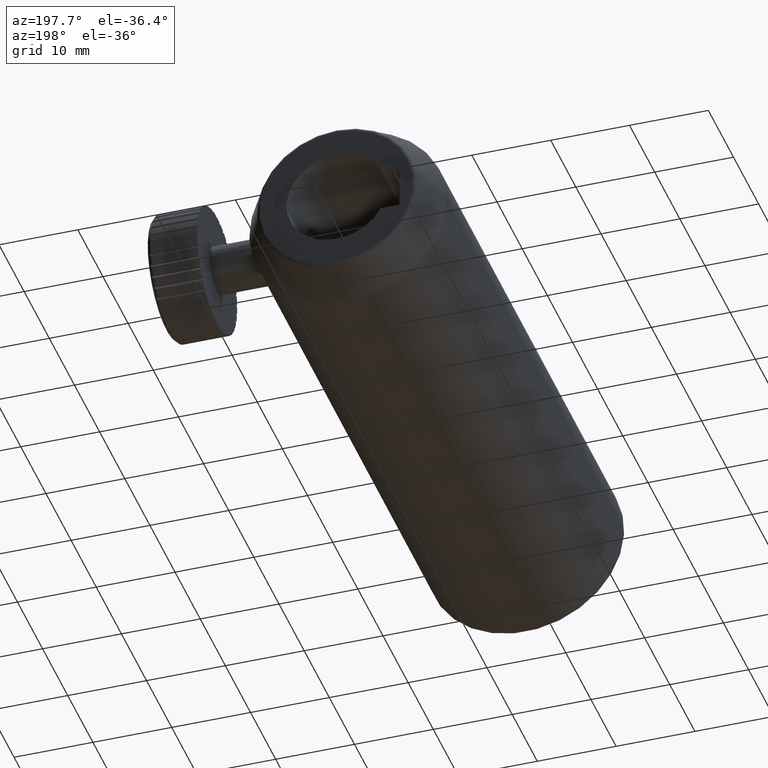
[diagram: clean part render]
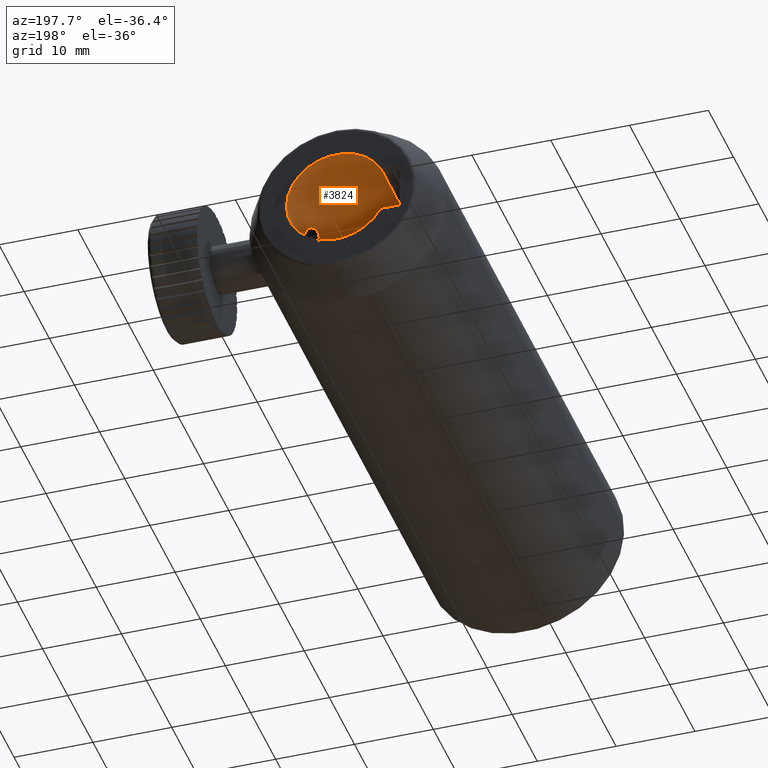
[diagram: same view with one face highlighted and labeled with its STEP entity id]
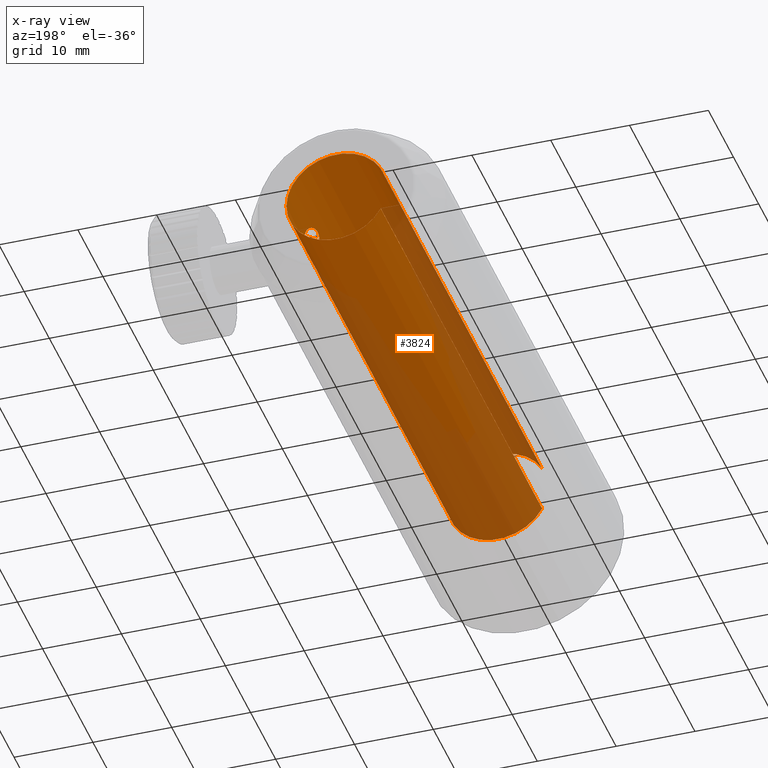
[diagram: x-ray of the same camera — body ghosted, the highlighted face saturated]
A machine part, auxiliary view. The second image highlights one B-rep face of the part: STEP entity #3824.
The next image is the same camera in x-ray: the body ghosted, the highlighted face saturated — about 52% of this face is hidden behind the body in this view.
In plain terms, the highlighted cylindrical surface (partial cylindrical patch) has radius 6.35 mm, axis along (-0, 1, -0).
Its self-contained STEP definition (entity closure, byte-faithful):
#196 = CARTESIAN_POINT ( 'NONE',  ( -11.74645182002324600, 4.887555402619315500, 2.999999999999991600 ) ) ;
#205 = CARTESIAN_POINT ( 'NONE',  ( -11.74645182002324400, 4.887555402619315500, -3.000000000000003600 ) ) ;
#206 = DIRECTION ( 'NONE',  ( -0.0000000000000000000, 1.000000000000000000, -0.0000000000000000000 ) ) ;
#209 = DIRECTION ( 'NONE',  ( -0.0000000000000000000, 1.000000000000000000, -0.0000000000000000000 ) ) ;
#217 = CARTESIAN_POINT ( 'NONE',  ( 0.1127862888916320900, 53.22654747030340200, -1.050000000000003400 ) ) ;
#218 = CARTESIAN_POINT ( 'NONE',  ( -6.149801035848838600, 69.08755540261930200, -3.686287386450715100E-015 ) ) ;
#219 = DIRECTION ( 'NONE',  ( 0.0000000000000000000, 1.000000000000000000, 0.0000000000000000000 ) ) ;
#220 = DIRECTION ( 'NONE',  ( 0.0000000000000000000, 0.0000000000000000000, 1.000000000000000000 ) ) ;
#221 = CARTESIAN_POINT ( 'NONE',  ( 0.1127862888916321100, 53.08755540261933700, -1.050000000000003600 ) ) ;
#222 = CARTESIAN_POINT ( 'NONE',  ( 0.1175538740577776700, 53.36291736459102000, -1.022551045693605800 ) ) ;
#223 = CARTESIAN_POINT ( 'NONE',  ( 0.1338553941838941700, 53.61710688648283000, -0.9170660156651465600 ) ) ;
#224 = CARTESIAN_POINT ( 'NONE',  ( 0.1452721232226505700, 53.73343532796955900, -0.8390661729969933800 ) ) ;
#225 = CARTESIAN_POINT ( 'NONE',  ( 0.1680358082486116700, 53.92676764546575200, -0.6456901207970314700 ) ) ;
#226 = CARTESIAN_POINT ( 'NONE',  ( 0.1794131331572460800, 54.00496162320275300, -0.5287358776458204200 ) ) ;
#227 = CARTESIAN_POINT ( 'NONE',  ( 0.1954532670500752400, 54.10977570415656100, -0.2761547700114848100 ) ) ;
#228 = CARTESIAN_POINT ( 'NONE',  ( 0.2001859288072050100, 54.13747656981234300, -0.1378173337657067300 ) ) ;
#229 = CARTESIAN_POINT ( 'NONE',  ( 0.2002119424379894000, 54.13763389036652300, 0.1366134853402448400 ) ) ;
#230 = CARTESIAN_POINT ( 'NONE',  ( 0.1955516781808940800, 54.11040037181292200, 0.2743394300279313200 ) ) ;
#231 = CARTESIAN_POINT ( 'NONE',  ( 0.1794205380037191800, 54.00502828858423500, 0.5288832171584710900 ) ) ;
#232 = CARTESIAN_POINT ( 'NONE',  ( 0.1681806591594753600, 53.92798082375904300, 0.6444420786181618300 ) ) ;
#233 = CARTESIAN_POINT ( 'NONE',  ( 0.1451581703907647300, 53.73248454466396900, 0.8400517144397043900 ) ) ;
#234 = CARTESIAN_POINT ( 'NONE',  ( 0.1338441040072493900, 53.61695035671112900, 0.9171405066267663800 ) ) ;
#235 = CARTESIAN_POINT ( 'NONE',  ( 0.1175571969555344900, 53.36294965107336500, 1.022528109262469800 ) ) ;
#236 = CARTESIAN_POINT ( 'NONE',  ( 0.1127953020863245900, 53.22513180593021100, 1.049946241977821800 ) ) ;
#237 = CARTESIAN_POINT ( 'NONE',  ( 0.1127773026570364600, 52.95080080214076900, 1.050053597222189600 ) ) ;
#238 = CARTESIAN_POINT ( 'NONE',  ( 0.1175582044587163000, 52.81240751252588000, 1.022502414864849800 ) ) ;
#239 = CARTESIAN_POINT ( 'NONE',  ( 0.1337361368982814300, 52.55958389235644300, 0.9178581775950304100 ) ) ;
#240 = CARTESIAN_POINT ( 'NONE',  ( 0.1451673029532555600, 52.44266625170190800, 0.8398535081107539900 ) ) ;
#241 = CARTESIAN_POINT ( 'NONE',  ( 0.1679574536873635300, 52.24890889630278700, 0.6464580183584887100 ) ) ;
#242 = CARTESIAN_POINT ( 'NONE',  ( 0.1792861826826529500, 52.17099650155407200, 0.5304802696492559900 ) ) ;
#243 = CARTESIAN_POINT ( 'NONE',  ( 0.1954785366912105700, 52.06515232504313700, 0.2760099320166076700 ) ) ;
#244 = CARTESIAN_POINT ( 'NONE',  ( 0.2001804198286628900, 52.03766755165266000, 0.1396097649219564800 ) ) ;
#245 = CARTESIAN_POINT ( 'NONE',  ( 0.2002173957539453400, 52.03744393527199500, -0.1379177008750019400 ) ) ;
#246 = CARTESIAN_POINT ( 'NONE',  ( 0.1955342158438858100, 52.06482407102776500, -0.2746212130955775800 ) ) ;
#247 = CARTESIAN_POINT ( 'NONE',  ( 0.1794355118624509400, 52.16998513439516200, -0.5286407004498763200 ) ) ;
#248 = CARTESIAN_POINT ( 'NONE',  ( 0.1680859281976586900, 52.24797849105552000, -0.6452014765189395500 ) ) ;
#295 = B_SPLINE_CURVE_WITH_KNOTS ( 'NONE', 3,
 ( #221, #217, #222, #223, #224, #225, #226, #227, #228, #229, #230, #231, #232, #233, #234, #235, #236, #237, #238, #239, #240, #241, #242, #243, #244, #245, #246, #247, #248, #3828, #3829, #3830, #3831, #3832 ),
 .UNSPECIFIED., .T., .F.,
 ( 4, 2, 2, 2, 2, 2, 2, 2, 2, 2, 2, 2, 2, 2, 2, 2, 4 ),
 ( 0.0000000000000000000, 0.0004110016561635930000, 0.0008220033123271860000, 0.001233004968490779100, 0.001644006624654372000, 0.002055008280817964900, 0.002466009936981558200, 0.002877011593145151100, 0.003288013249308744000, 0.003699014905472336900, 0.004110016561635929800, 0.004521018217799523100, 0.004932019873963116400, 0.005343021530126708900, 0.005754023186290302200, 0.006165024842453894700, 0.006576026498617488000 ),
 .UNSPECIFIED. ) ;
#296 = B_SPLINE_CURVE_WITH_KNOTS ( 'NONE', 3,
 ( #3838, #3834, #3839, #3840, #3841, #3842, #3843, #3844, #3845, #3846, #3847, #3848, #3849, #3850, #3851, #3852, #3853, #3854, #3855, #3856, #3857, #3858, #3859, #3860, #3861, #3862, #3863, #3864, #3865, #3866, #3867, #3868, #3869, #3870, #3871, #3872, #3873, #3874, #3875, #3876, #3877, #3878, #3879, #3880, #3881, #3882, #3883, #3884, #3885, #3886, #3887, #3888, #3889, #3890, #3891, #3892, #3893, #3894, #3895, #3896, #3897, #3898, #3899, #3900, #3901, #3902 ),
 .UNSPECIFIED., .T., .F.,
 ( 4, 2, 2, 2, 2, 2, 2, 2, 2, 2, 2, 2, 2, 2, 2, 2, 2, 2, 2, 2, 2, 2, 2, 2, 2, 2, 2, 2, 2, 2, 2, 2, 4 ),
 ( 0.0000000000000000000, 0.0005947439517974760200, 0.001189487903594952000, 0.001784231855392428200, 0.002378975807189904100, 0.002973719758987380000, 0.003568463710784856300, 0.004163207662582332200, 0.004757951614379808200, 0.005352695566177284100, 0.005947439517974760000, 0.006542183469772235900, 0.007136927421569712700, 0.007731671373367188600, 0.008326415325164664500, 0.008921159276962140400, 0.009515903228759616300, 0.01011064718055709200, 0.01070539113235456800, 0.01130013508415204400, 0.01189487903594952000, 0.01248962298774699600, 0.01308436693954447200, 0.01367911089134194800, 0.01427385484313942500, 0.01486859879493690100, 0.01546334274673437700, 0.01605808669853185300, 0.01665283065032932900, 0.01724757460212680500, 0.01784231855392428100, 0.01843706250572175700, 0.01903180645751923300 ),
 .UNSPECIFIED. ) ;
#1136 = DIRECTION ( 'NONE',  ( 0.0000000000000000000, 0.0000000000000000000, 1.000000000000000000 ) ) ;
#1137 = CARTESIAN_POINT ( 'NONE',  ( -6.149801035848838600, 4.887555402619315500, -3.686287386450715100E-015 ) ) ;
#1138 = DIRECTION ( 'NONE',  ( -0.0000000000000000000, 1.000000000000000000, -0.0000000000000000000 ) ) ;
#1217 = CARTESIAN_POINT ( 'NONE',  ( -11.74645182002324400, 4.887555402619315500, -3.000000000000003600 ) ) ;
#1220 = CARTESIAN_POINT ( 'NONE',  ( -11.74645182002324400, 69.08755540261930200, -3.000000000000003600 ) ) ;
#1230 = CARTESIAN_POINT ( 'NONE',  ( -11.74645182002324600, 4.887555402619315500, 2.999999999999991600 ) ) ;
#1234 = CARTESIAN_POINT ( 'NONE',  ( -11.74645182002324600, 69.08755540261930200, 2.999999999999991600 ) ) ;
#1259 = CARTESIAN_POINT ( 'NONE',  ( 0.1127862888916321100, 53.08755540261933000, -1.050000000000003600 ) ) ;
#1260 = CARTESIAN_POINT ( 'NONE',  ( -0.5531502516744344300, 59.08755540261933000, 3.000000000000000900 ) ) ;
#1838 = ORIENTED_EDGE ( 'NONE', *, *, #2944, .T. ) ;
#1839 = ORIENTED_EDGE ( 'NONE', *, *, #2943, .T. ) ;
#1840 = ORIENTED_EDGE ( 'NONE', *, *, #2936, .F. ) ;
#1841 = ORIENTED_EDGE ( 'NONE', *, *, #2945, .F. ) ;
#1842 = ORIENTED_EDGE ( 'NONE', *, *, #2938, .T. ) ;
#1843 = ORIENTED_EDGE ( 'NONE', *, *, #2946, .F. ) ;
#2539 = FACE_BOUND ( 'NONE', #4818, .T. ) ;
#2545 = FACE_BOUND ( 'NONE', #4812, .T. ) ;
#2548 = FACE_OUTER_BOUND ( 'NONE', #4816, .T. ) ;
#2550 = CYLINDRICAL_SURFACE ( 'NONE', #2676, 6.349999999999999600 ) ;
#2573 = VERTEX_POINT ( 'NONE', #1259 ) ;
#2574 = VERTEX_POINT ( 'NONE', #1260 ) ;
#2676 = AXIS2_PLACEMENT_3D ( 'NONE', #1137, #1138, #1136 ) ;
#2936 = EDGE_CURVE ( 'NONE', #4936, #4941, #3519, .T. ) ;
#2938 = EDGE_CURVE ( 'NONE', #4951, #4955, #3517, .T. ) ;
#2943 = EDGE_CURVE ( 'NONE', #4955, #4941, #3533, .T. ) ;
#2944 = EDGE_CURVE ( 'NONE', #2573, #2573, #295, .T. ) ;
#2945 = EDGE_CURVE ( 'NONE', #4951, #4936, #3537, .T. ) ;
#2946 = EDGE_CURVE ( 'NONE', #2574, #2574, #296, .T. ) ;
#3517 = LINE ( 'NONE', #196, #3526 ) ;
#3519 = LINE ( 'NONE', #205, #3522 ) ;
#3522 = VECTOR ( 'NONE', #206, 1000.000000000000000 ) ;
#3526 = VECTOR ( 'NONE', #209, 1000.000000000000000 ) ;
#3533 = CIRCLE ( 'NONE', #3763, 6.349999999999999600 ) ;
#3537 = CIRCLE ( 'NONE', #3764, 6.349999999999999600 ) ;
#3763 = AXIS2_PLACEMENT_3D ( 'NONE', #218, #219, #220 ) ;
#3764 = AXIS2_PLACEMENT_3D ( 'NONE', #3835, #3836, #3837 ) ;
#3824 = ADVANCED_FACE ( 'NONE', ( #2545, #2548, #2539 ), #2550, .F. ) ;
#3828 = CARTESIAN_POINT ( 'NONE',  ( 0.1453337888938600300, 52.44109104811040100, -0.8386048974830763200 ) ) ;
#3829 = CARTESIAN_POINT ( 'NONE',  ( 0.1338727798570093500, 52.55799765298547800, -0.9169339850863568200 ) ) ;
#3830 = CARTESIAN_POINT ( 'NONE',  ( 0.1176449637270351700, 52.81051001715046300, -1.021981016259115900 ) ) ;
#3831 = CARTESIAN_POINT ( 'NONE',  ( 0.1127862888916321400, 52.94856333493526500, -1.050000000000003600 ) ) ;
#3832 = CARTESIAN_POINT ( 'NONE',  ( 0.1127862888916321100, 53.08755540261933700, -1.050000000000003600 ) ) ;
#3834 = CARTESIAN_POINT ( 'NONE',  ( -0.5531502516744342100, 59.28894311982527700, 3.000000000000000900 ) ) ;
#3835 = CARTESIAN_POINT ( 'NONE',  ( -6.149801035848838600, 4.887555402619315500, -3.686287386450715100E-015 ) ) ;
#3836 = DIRECTION ( 'NONE',  ( 0.0000000000000000000, 1.000000000000000000, 0.0000000000000000000 ) ) ;
#3837 = DIRECTION ( 'NONE',  ( 0.0000000000000000000, 0.0000000000000000000, 1.000000000000000000 ) ) ;
#3838 = CARTESIAN_POINT ( 'NONE',  ( -0.5531502516744343200, 59.08755540261933000, 3.000000000000001300 ) ) ;
#3839 = CARTESIAN_POINT ( 'NONE',  ( -0.5422685697541045300, 59.48625305992241200, 2.979935098424563800 ) ) ;
#3840 = CARTESIAN_POINT ( 'NONE',  ( -0.5015377185805991500, 59.87331488543225800, 2.901991565792545500 ) ) ;
#3841 = CARTESIAN_POINT ( 'NONE',  ( -0.4711932425889558400, 60.06499024655251900, 2.843056039639027900 ) ) ;
#3842 = CARTESIAN_POINT ( 'NONE',  ( -0.3979850996744546100, 60.42627828958748600, 2.691870641500110600 ) ) ;
#3843 = CARTESIAN_POINT ( 'NONE',  ( -0.3552021470451639500, 60.59715604087150400, 2.599815228174492200 ) ) ;
#3844 = CARTESIAN_POINT ( 'NONE',  ( -0.2626400154835165100, 60.92063551123305800, 2.382803102034222000 ) ) ;
#3845 = CARTESIAN_POINT ( 'NONE',  ( -0.2134507766413460100, 61.07098480934787700, 2.259000875290202000 ) ) ;
#3846 = CARTESIAN_POINT ( 'NONE',  ( -0.1169261859016569200, 61.34350681313505000, 1.986897178877038200 ) ) ;
#3847 = CARTESIAN_POINT ( 'NONE',  ( -0.06887632126048977300, 61.46769347835989800, 1.836585008827332300 ) ) ;
#3848 = CARTESIAN_POINT ( 'NONE',  ( 0.01968046385121499700, 61.68561503439065100, 1.512675743178115500 ) ) ;
#3849 = CARTESIAN_POINT ( 'NONE',  ( 0.05950747701317029400, 61.77783579369636200, 1.341836234649425900 ) ) ;
#3850 = CARTESIAN_POINT ( 'NONE',  ( 0.1265185652735987500, 61.92908388393827600, 0.9817580929562289600 ) ) ;
#3851 = CARTESIAN_POINT ( 'NONE',  ( 0.1539093199242566300, 61.98849980015615600, 0.7898370028870931300 ) ) ;
#3852 = CARTESIAN_POINT ( 'NONE',  ( 0.1905218739281760700, 62.06722128126453700, 0.4011385550746269800 ) ) ;
#3853 = CARTESIAN_POINT ( 'NONE',  ( 0.2000341767572055600, 62.08720660223330900, 0.2043889757650986500 ) ) ;
#3854 = CARTESIAN_POINT ( 'NONE',  ( 0.2003595171123386800, 62.08789524011745400, -0.1940181235909419200 ) ) ;
#3855 = CARTESIAN_POINT ( 'NONE',  ( 0.1908534898148914500, 62.06792179322489700, -0.3956501949236599900 ) ) ;
#3856 = CARTESIAN_POINT ( 'NONE',  ( 0.1546836046025657500, 61.99017673343724500, -0.7835255636387373800 ) ) ;
#3857 = CARTESIAN_POINT ( 'NONE',  ( 0.1278485061401499500, 61.93203169814479700, -0.9736665999007951800 ) ) ;
#3858 = CARTESIAN_POINT ( 'NONE',  ( 0.06030490078087573400, 61.77968789711793800, -1.338467285978000000 ) ) ;
#3859 = CARTESIAN_POINT ( 'NONE',  ( 0.02034011138162611700, 61.68715591454991200, -1.509913196457731500 ) ) ;
#3860 = CARTESIAN_POINT ( 'NONE',  ( -0.06770967387431230100, 61.47064507367418400, -1.832660443775259600 ) ) ;
#3861 = CARTESIAN_POINT ( 'NONE',  ( -0.1161308705797763900, 61.34563767253786200, -1.984507923284942300 ) ) ;
#3862 = CARTESIAN_POINT ( 'NONE',  ( -0.2128131533762840600, 61.07289794008944700, -2.257348498617960600 ) ) ;
#3863 = CARTESIAN_POINT ( 'NONE',  ( -0.2614863691224205100, 60.92432806259684200, -2.379965912900855700 ) ) ;
#3864 = CARTESIAN_POINT ( 'NONE',  ( -0.3541926714055248500, 60.60101518208516300, -2.597577919322180400 ) ) ;
#3865 = CARTESIAN_POINT ( 'NONE',  ( -0.3974203815714921200, 60.42853654833533000, -2.690654279141283700 ) ) ;
#3866 = CARTESIAN_POINT ( 'NONE',  ( -0.4703271960458256200, 60.06978263624111500, -2.841316692056482300 ) ) ;
#3867 = CARTESIAN_POINT ( 'NONE',  ( -0.5004765760649931800, 59.88148515957397700, -2.899940515935108400 ) ) ;
#3868 = CARTESIAN_POINT ( 'NONE',  ( -0.5421105417189238100, 59.48961296693198600, -2.979652525030227900 ) ) ;
#3869 = CARTESIAN_POINT ( 'NONE',  ( -0.5529093375765877800, 59.29250767175780400, -2.999550561216068000 ) ) ;
#3870 = CARTESIAN_POINT ( 'NONE',  ( -0.5533831741316105300, 58.89597869896306300, -3.000434529952761100 ) ) ;
#3871 = CARTESIAN_POINT ( 'NONE',  ( -0.5426701431456180100, 58.69405772401633200, -2.980689172121560900 ) ) ;
#3872 = CARTESIAN_POINT ( 'NONE',  ( -0.5020199839241165100, 58.30502464562694300, -2.902928517588681400 ) ) ;
#3873 = CARTESIAN_POINT ( 'NONE',  ( -0.4723991357792401400, 58.11687677354593300, -2.845471046101336400 ) ) ;
#3874 = CARTESIAN_POINT ( 'NONE',  ( -0.3989063545282290900, 57.75259686331274600, -2.693846352981782200 ) ) ;
#3875 = CARTESIAN_POINT ( 'NONE',  ( -0.3557321379762262700, 57.58006872946050000, -2.600956424350675500 ) ) ;
#3876 = CARTESIAN_POINT ( 'NONE',  ( -0.2637878334655883700, 57.25822954452660700, -2.385593698859022300 ) ) ;
#3877 = CARTESIAN_POINT ( 'NONE',  ( -0.2142812299179485400, 57.10656212166048800, -2.261224983020027500 ) ) ;
#3878 = CARTESIAN_POINT ( 'NONE',  ( -0.1172341229882133100, 56.83238299884462200, -1.987880839560314500 ) ) ;
#3879 = CARTESIAN_POINT ( 'NONE',  ( -0.06972920714236385800, 56.70960761398976800, -1.839319626619865900 ) ) ;
#3880 = CARTESIAN_POINT ( 'NONE',  ( 0.01851752532470884000, 56.49226811306231600, -1.517305591824215800 ) ) ;
#3881 = CARTESIAN_POINT ( 'NONE',  ( 0.05936502259737047600, 56.39760059606005200, -1.342531288476921200 ) ) ;
#3882 = CARTESIAN_POINT ( 'NONE',  ( 0.1264979643697815800, 56.24606937236755000, -0.9819390315873386400 ) ) ;
#3883 = CARTESIAN_POINT ( 'NONE',  ( 0.1533507089282207000, 56.18782040586287300, -0.7944911552416326100 ) ) ;
#3884 = CARTESIAN_POINT ( 'NONE',  ( 0.1903581236602773800, 56.10823344928240200, -0.4041286249895293900 ) ) ;
#3885 = CARTESIAN_POINT ( 'NONE',  ( 0.2000361078817678200, 56.08790011544776600, -0.2034997264719692100 ) ) ;
#3886 = CARTESIAN_POINT ( 'NONE',  ( 0.2003576487606913700, 56.08721951980932400, 0.1932060321345966400 ) ) ;
#3887 = CARTESIAN_POINT ( 'NONE',  ( 0.1910474004567178900, 56.10677313213788900, 0.3934235488252338400 ) ) ;
#3888 = CARTESIAN_POINT ( 'NONE',  ( 0.1545715596449823700, 56.18517398822329100, 0.7848739759702582100 ) ) ;
#3889 = CARTESIAN_POINT ( 'NONE',  ( 0.1278814078320636400, 56.24301578066069900, 0.9732961856381812100 ) ) ;
#3890 = CARTESIAN_POINT ( 'NONE',  ( 0.06070963017859783200, 56.39449923349966600, 1.336472818966664100 ) ) ;
#3891 = CARTESIAN_POINT ( 'NONE',  ( 0.02001082002537502400, 56.48873798547921200, 1.511233564953384100 ) ) ;
#3892 = CARTESIAN_POINT ( 'NONE',  ( -0.06797955846076739200, 56.70515616790580500, 1.833535585122060700 ) ) ;
#3893 = CARTESIAN_POINT ( 'NONE',  ( -0.1157396609784940400, 56.82834666664077600, 1.983433371258654700 ) ) ;
#3894 = CARTESIAN_POINT ( 'NONE',  ( -0.2134900429234123100, 57.10414529834264400, 2.259229162612195200 ) ) ;
#3895 = CARTESIAN_POINT ( 'NONE',  ( -0.2622043957584796500, 57.25318892974402000, 2.381689739763164200 ) ) ;
#3896 = CARTESIAN_POINT ( 'NONE',  ( -0.3541157926047978600, 57.57392612199525000, 2.597358807354055900 ) ) ;
#3897 = CARTESIAN_POINT ( 'NONE',  ( -0.3977608676777077400, 57.74783228792938400, 2.691397524595369200 ) ) ;
#3898 = CARTESIAN_POINT ( 'NONE',  ( -0.4711302032135229500, 58.10970349501600700, 2.842935860379050400 ) ) ;
#3899 = CARTESIAN_POINT ( 'NONE',  ( -0.5008435554850739800, 58.29679581455670200, 2.900646200917364100 ) ) ;
#3900 = CARTESIAN_POINT ( 'NONE',  ( -0.5419322982237435600, 58.68410541862120800, 2.979308177987163700 ) ) ;
#3901 = CARTESIAN_POINT ( 'NONE',  ( -0.5531502516744344300, 58.88616768541336900, 3.000000000000001800 ) ) ;
#3902 = CARTESIAN_POINT ( 'NONE',  ( -0.5531502516744343200, 59.08755540261933000, 3.000000000000001300 ) ) ;
#4812 = EDGE_LOOP ( 'NONE', ( #1838 ) ) ;
#4816 = EDGE_LOOP ( 'NONE', ( #1839, #1840, #1841, #1842 ) ) ;
#4818 = EDGE_LOOP ( 'NONE', ( #1843 ) ) ;
#4936 = VERTEX_POINT ( 'NONE', #1217 ) ;
#4941 = VERTEX_POINT ( 'NONE', #1220 ) ;
#4951 = VERTEX_POINT ( 'NONE', #1230 ) ;
#4955 = VERTEX_POINT ( 'NONE', #1234 ) ;